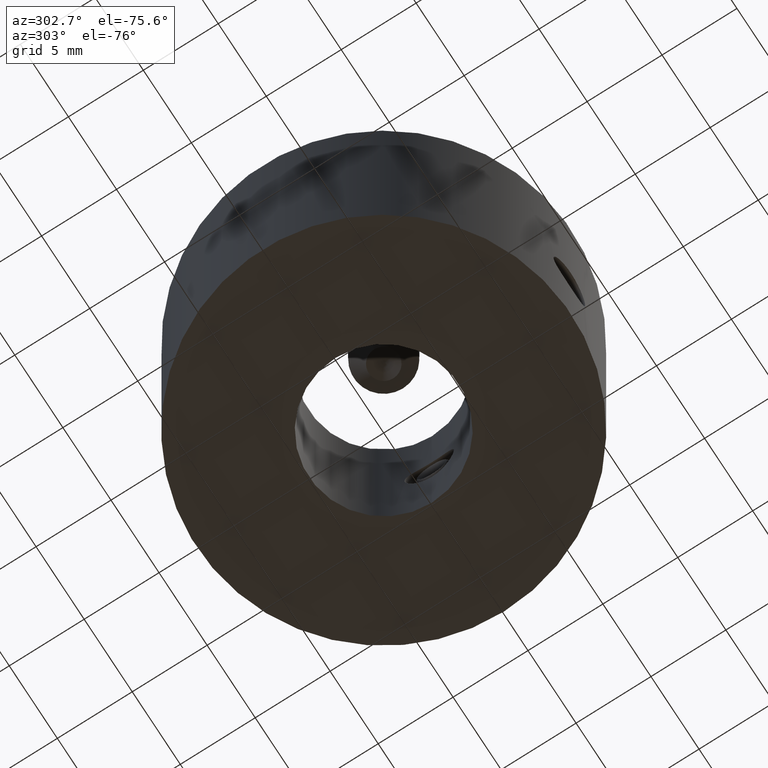
[diagram: clean part render]
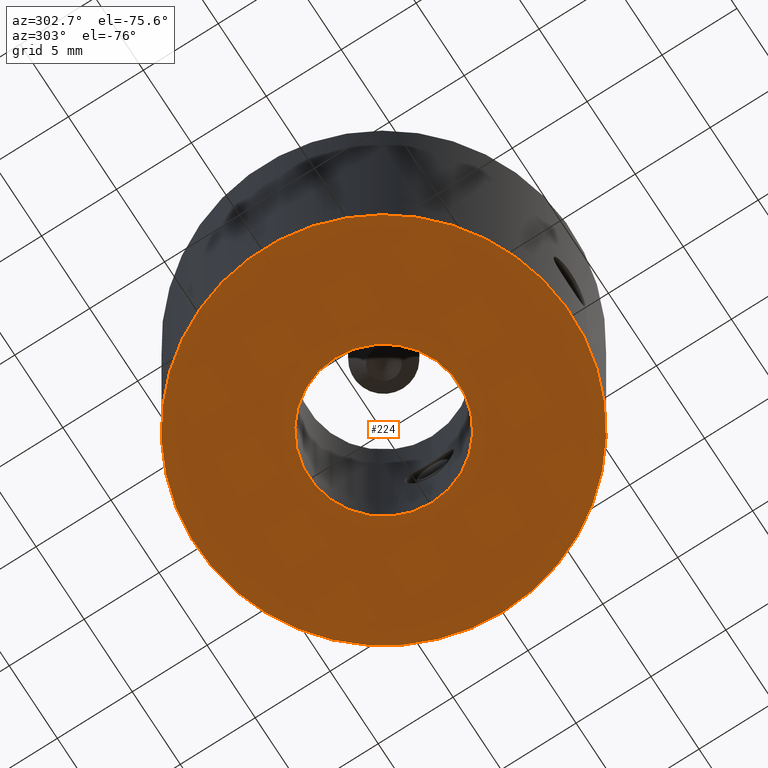
[diagram: same view with one face highlighted and labeled with its STEP entity id]
A machine part, auxiliary view. The second image highlights one B-rep face of the part: STEP entity #224.
In plain terms, the highlighted planar face has unit normal (0, 0, 1).
Its self-contained STEP definition (entity closure, byte-faithful):
#224 = ADVANCED_FACE( '', ( #266, #267 ), #268, .F. );
#266 = FACE_OUTER_BOUND( '', #326, .T. );
#267 = FACE_BOUND( '', #327, .T. );
#268 = PLANE( '', #328 );
#326 = EDGE_LOOP( '', ( #396 ) );
#327 = EDGE_LOOP( '', ( #397 ) );
#328 = AXIS2_PLACEMENT_3D( '', #398, #399, #400 );
#396 = ORIENTED_EDGE( '', *, *, #499, .F. );
#397 = ORIENTED_EDGE( '', *, *, #503, .T. );
#398 = CARTESIAN_POINT( '', ( 0.000000000000000, 0.000000000000000, -15.0000000000000 ) );
#399 = DIRECTION( '', ( 0.000000000000000, 0.000000000000000, 1.00000000000000 ) );
#400 = DIRECTION( '', ( 1.00000000000000, 0.000000000000000, 0.000000000000000 ) );
#499 = EDGE_CURVE( '', #535, #535, #536, .T. );
#503 = EDGE_CURVE( '', #543, #543, #544, .T. );
#535 = VERTEX_POINT( '', #701 );
#536 = CIRCLE( '', #702, 12.5000000000000 );
#543 = VERTEX_POINT( '', #819 );
#544 = CIRCLE( '', #820, 5.00000000000000 );
#701 = CARTESIAN_POINT( '', ( 12.5000000000000, 0.000000000000000, -15.0000000000000 ) );
#702 = AXIS2_PLACEMENT_3D( '', #909, #910, #911 );
#819 = CARTESIAN_POINT( '', ( 5.00000000000000, 0.000000000000000, -15.0000000000000 ) );
#820 = AXIS2_PLACEMENT_3D( '', #915, #916, #917 );
#909 = CARTESIAN_POINT( '', ( 0.000000000000000, 0.000000000000000, -15.0000000000000 ) );
#910 = DIRECTION( '', ( 0.000000000000000, 0.000000000000000, 1.00000000000000 ) );
#911 = DIRECTION( '', ( 1.00000000000000, 0.000000000000000, 0.000000000000000 ) );
#915 = CARTESIAN_POINT( '', ( 0.000000000000000, 0.000000000000000, -15.0000000000000 ) );
#916 = DIRECTION( '', ( 0.000000000000000, 0.000000000000000, 1.00000000000000 ) );
#917 = DIRECTION( '', ( 1.00000000000000, 0.000000000000000, 0.000000000000000 ) );